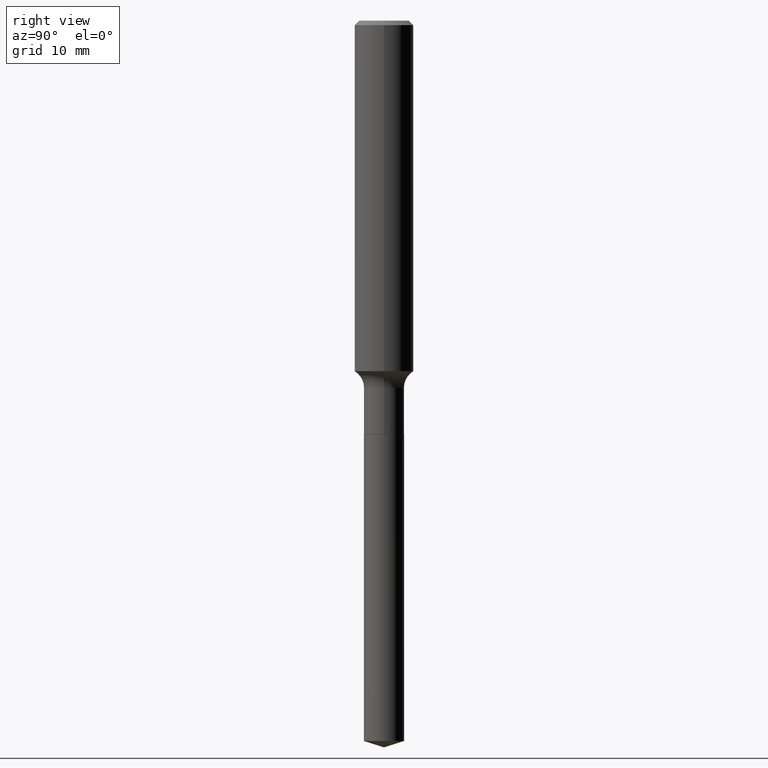
[diagram: clean part render]
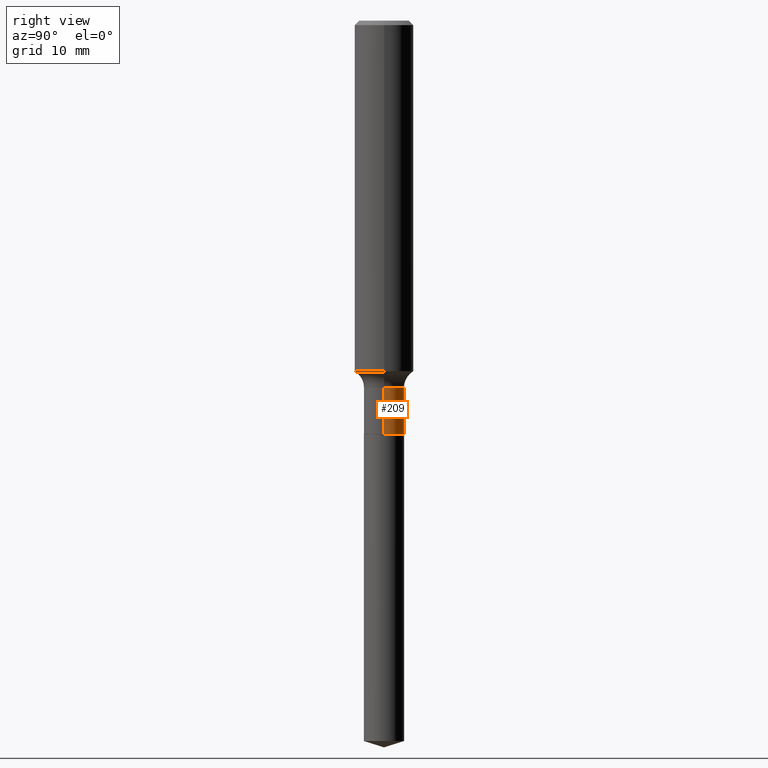
[diagram: same view with one face highlighted and labeled with its STEP entity id]
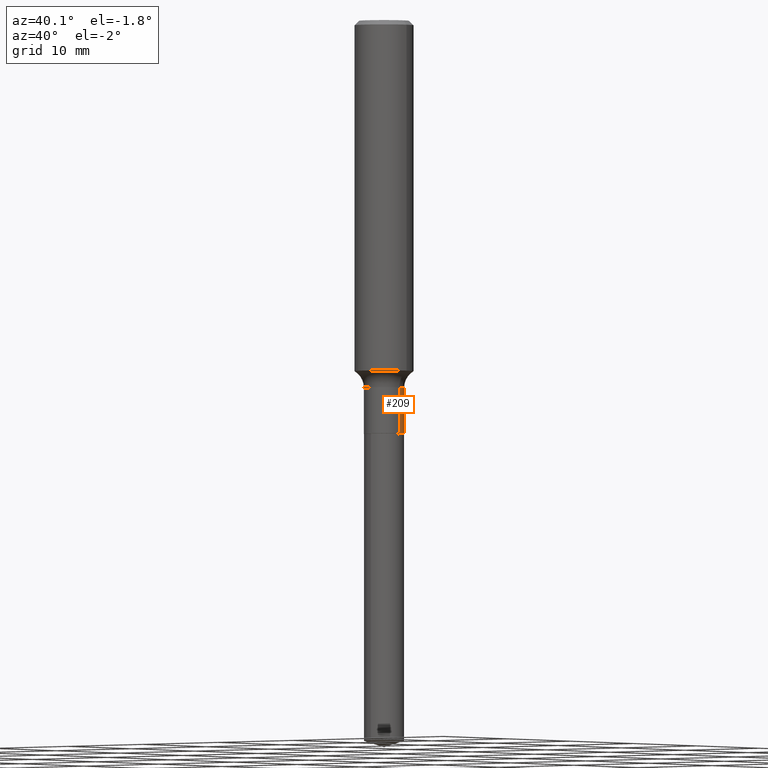
[diagram: same view with one face highlighted and labeled with its STEP entity id]
A machine part, right view. The second image highlights one B-rep face of the part: STEP entity #209.
A second angle (auxiliary view) of the same face is appended — the face is thin or edge-on in the first view.
In plain terms, the highlighted cylindrical surface (edge-blend (fillet) strip) has radius 2.0498 mm, axis along (-0, 0, 1).
Its self-contained STEP definition (entity closure, byte-faithful):
#5 = ORIENTED_EDGE ( 'NONE', *, *, #353, .F. ) ;
#39 = VERTEX_POINT ( 'NONE', #77 ) ;
#63 = CARTESIAN_POINT ( 'NONE',  ( -0.08069999999999998008, 5.734079877584007085E-16, -3.969580617835708043E-30 ) ) ;
#77 = CARTESIAN_POINT ( 'NONE',  ( 0.08069999999999999396, -6.348909666552373459E-15, -1.657000000000000028 ) ) ;
#79 = ORIENTED_EDGE ( 'NONE', *, *, #98, .F. ) ;
#98 = EDGE_CURVE ( 'NONE', #172, #240, #314, .T. ) ;
#102 = DIRECTION ( 'NONE',  ( -2.445468806185136877E-29, 3.491481338843145188E-15, 1.000000000000000000 ) ) ;
#104 = CARTESIAN_POINT ( 'NONE',  ( -0.08069999999999999396, -4.888839992794759829E-15, -1.657000000000000028 ) ) ;
#124 = FACE_OUTER_BOUND ( 'NONE', #311, .T. ) ;
#141 = CARTESIAN_POINT ( 'NONE',  ( 4.052141811848771691E-29, -5.785384578463092385E-15, -1.657000000000000028 ) ) ;
#146 = VECTOR ( 'NONE', #213, 39.37007874015748143 ) ;
#148 = ORIENTED_EDGE ( 'NONE', *, *, #358, .T. ) ;
#165 = CARTESIAN_POINT ( 'NONE',  ( 0.000000000000000000, 0.000000000000000000, 0.000000000000000000 ) ) ;
#171 = DIRECTION ( 'NONE',  ( 1.000000000000000000, -6.982962677686260400E-15, 0.000000000000000000 ) ) ;
#172 = VERTEX_POINT ( 'NONE', #241 ) ;
#176 = AXIS2_PLACEMENT_3D ( 'NONE', #426, #249, #395 ) ;
#184 = AXIS2_PLACEMENT_3D ( 'NONE', #165, #210, #354 ) ;
#200 = CYLINDRICAL_SURFACE ( 'NONE', #184, 0.08069999999999998008 ) ;
#202 = CARTESIAN_POINT ( 'NONE',  ( -0.08069999999999998008, -4.888839992794759829E-15, -1.471900000000000208 ) ) ;
#209 = ADVANCED_FACE ( 'NONE', ( #124 ), #200, .T. ) ;
#210 = DIRECTION ( 'NONE',  ( -2.445468806185136597E-29, 3.491481338843145583E-15, 1.000000000000000000 ) ) ;
#211 = VECTOR ( 'NONE', #102, 39.37007874015748143 ) ;
#213 = DIRECTION ( 'NONE',  ( -2.445468806185136877E-29, 3.491481338843145188E-15, 1.000000000000000000 ) ) ;
#240 = VERTEX_POINT ( 'NONE', #202 ) ;
#241 = CARTESIAN_POINT ( 'NONE',  ( 0.08069999999999998008, -5.702636470732508383E-15, -1.471900000000000208 ) ) ;
#249 = DIRECTION ( 'NONE',  ( -2.445468806185136597E-29, 3.491481338843145583E-15, 1.000000000000000000 ) ) ;
#303 = VERTEX_POINT ( 'NONE', #104 ) ;
#311 = EDGE_LOOP ( 'NONE', ( #148, #409, #79, #5 ) ) ;
#314 = CIRCLE ( 'NONE', #176, 0.08069999999999998008 ) ;
#353 = EDGE_CURVE ( 'NONE', #39, #172, #446, .T. ) ;
#354 = DIRECTION ( 'NONE',  ( 1.000000000000000000, -6.982962677686265133E-15, 4.876176775795935232E-29 ) ) ;
#358 = EDGE_CURVE ( 'NONE', #39, #303, #448, .T. ) ;
#387 = EDGE_CURVE ( 'NONE', #303, #240, #401, .T. ) ;
#395 = DIRECTION ( 'NONE',  ( 1.000000000000000000, -6.982962677686261977E-15, 0.000000000000000000 ) ) ;
#401 = LINE ( 'NONE', #63, #146 ) ;
#409 = ORIENTED_EDGE ( 'NONE', *, *, #387, .T. ) ;
#411 = DIRECTION ( 'NONE',  ( -2.445468806185136597E-29, 3.491481338843145583E-15, 1.000000000000000000 ) ) ;
#426 = CARTESIAN_POINT ( 'NONE',  ( 3.599485535823903241E-29, -5.139111382643227310E-15, -1.471900000000000208 ) ) ;
#430 = AXIS2_PLACEMENT_3D ( 'NONE', #141, #411, #171 ) ;
#436 = CARTESIAN_POINT ( 'NONE',  ( 0.08069999999999998008, -5.635250880892814680E-16, 3.935074658067318957E-30 ) ) ;
#446 = LINE ( 'NONE', #436, #211 ) ;
#448 = CIRCLE ( 'NONE', #430, 0.08069999999999999396 ) ;